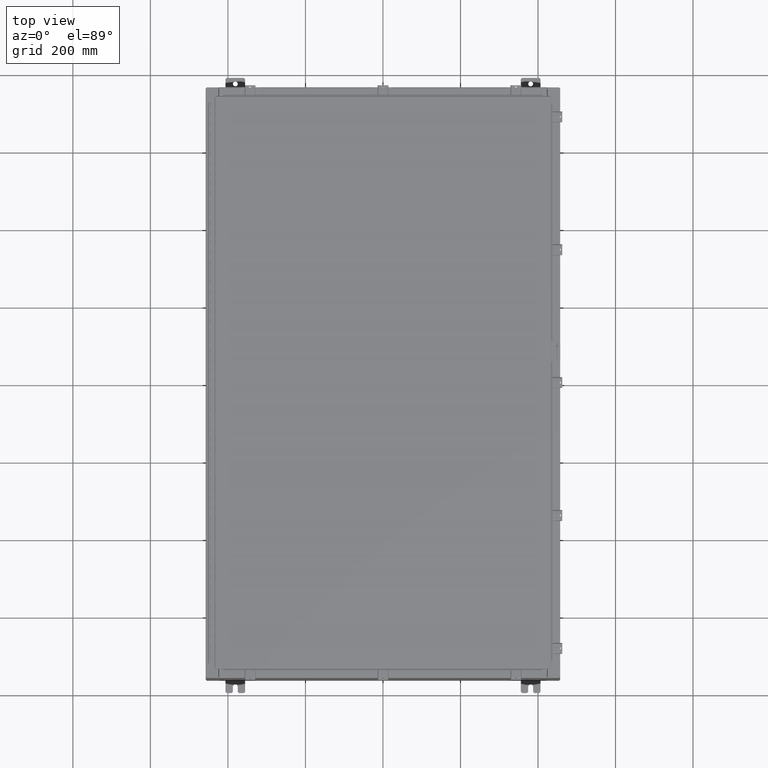
[diagram: clean part render]
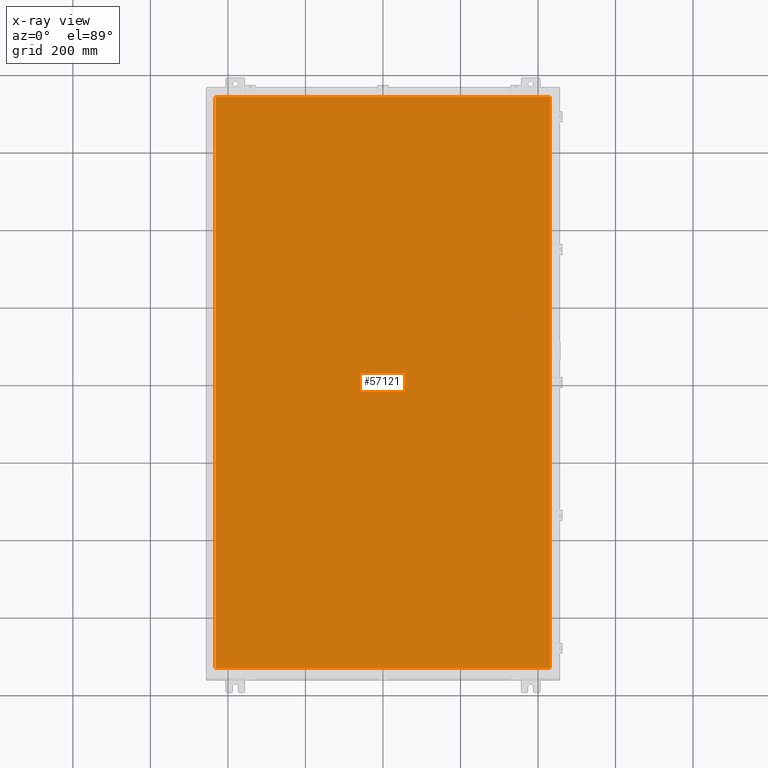
[diagram: x-ray — body ghosted, one internal face saturated and labeled with its STEP entity id]
A machine part, top view, then the same camera in x-ray: the body is ghosted and one INTERNAL B-rep face — a face not visible from any outside direction — is saturated and labeled: STEP entity #57121.
In plain terms, the highlighted planar face has unit normal (0, 0, -1).
Its self-contained STEP definition (entity closure, byte-faithful):
#585 = PLANE ( 'NONE',  #5860 ) ;
#938 = VERTEX_POINT ( 'NONE', #27040 ) ;
#1952 = VERTEX_POINT ( 'NONE', #56363 ) ;
#1992 = LINE ( 'NONE', #39474, #2623 ) ;
#2623 = VECTOR ( 'NONE', #58842, 39.37007874015748100 ) ;
#3828 = CARTESIAN_POINT ( 'NONE',  ( 16.99030000000000500, -29.00630000000000000, -0.07470000000000019700 ) ) ;
#4086 = ORIENTED_EDGE ( 'NONE', *, *, #13246, .F. ) ;
#5860 = AXIS2_PLACEMENT_3D ( 'NONE', #54025, #39497, #10447 ) ;
#8773 = ORIENTED_EDGE ( 'NONE', *, *, #40420, .F. ) ;
#9940 = CARTESIAN_POINT ( 'NONE',  ( -16.99029999999999400, 29.00630000000000000, -0.07469999999999582500 ) ) ;
#10447 = DIRECTION ( 'NONE',  ( -1.000000000000000000, 0.0000000000000000000, -0.0000000000000000000 ) ) ;
#10857 = FACE_OUTER_BOUND ( 'NONE', #30134, .T. ) ;
#11169 = ORIENTED_EDGE ( 'NONE', *, *, #50285, .F. ) ;
#11927 = VERTEX_POINT ( 'NONE', #37158 ) ;
#13246 = EDGE_CURVE ( 'NONE', #1952, #11927, #42598, .T. ) ;
#14784 = ORIENTED_EDGE ( 'NONE', *, *, #38473, .F. ) ;
#16760 = VECTOR ( 'NONE', #43926, 39.37007874015748100 ) ;
#23332 = CARTESIAN_POINT ( 'NONE',  ( 16.99030000000000500, -29.00630000000000000, -0.07470000000000000300 ) ) ;
#27040 = CARTESIAN_POINT ( 'NONE',  ( 16.99030000000000500, 29.00630000000000000, -0.07470000000000000300 ) ) ;
#28058 = DIRECTION ( 'NONE',  ( 0.0000000000000000000, 1.000000000000000000, 0.0000000000000000000 ) ) ;
#29789 = DIRECTION ( 'NONE',  ( -1.000000000000000000, -0.0000000000000000000, -0.0000000000000000000 ) ) ;
#30134 = EDGE_LOOP ( 'NONE', ( #14784, #8773, #4086, #11169 ) ) ;
#31787 = LINE ( 'NONE', #3828, #44747 ) ;
#32595 = VECTOR ( 'NONE', #29789, 39.37007874015748100 ) ;
#34085 = LINE ( 'NONE', #58964, #32595 ) ;
#37158 = CARTESIAN_POINT ( 'NONE',  ( -16.99029999999999800, -29.00630000000000000, -0.07470000000000000300 ) ) ;
#38473 = EDGE_CURVE ( 'NONE', #45668, #938, #31787, .T. ) ;
#39474 = CARTESIAN_POINT ( 'NONE',  ( -16.99029999999999800, -29.00630000000000300, -0.07469999999999804600 ) ) ;
#39497 = DIRECTION ( 'NONE',  ( 0.0000000000000000000, 0.0000000000000000000, -1.000000000000000000 ) ) ;
#40420 = EDGE_CURVE ( 'NONE', #11927, #45668, #1992, .T. ) ;
#42598 = LINE ( 'NONE', #9940, #16760 ) ;
#43926 = DIRECTION ( 'NONE',  ( 0.0000000000000000000, -1.000000000000000000, 0.0000000000000000000 ) ) ;
#44747 = VECTOR ( 'NONE', #28058, 39.37007874015748100 ) ;
#45668 = VERTEX_POINT ( 'NONE', #23332 ) ;
#50285 = EDGE_CURVE ( 'NONE', #938, #1952, #34085, .T. ) ;
#54025 = CARTESIAN_POINT ( 'NONE',  ( 0.0000000000000000000, 0.0000000000000000000, -0.07470000000000000300 ) ) ;
#56363 = CARTESIAN_POINT ( 'NONE',  ( -16.99029999999999400, 29.00630000000000000, -0.07470000000000000300 ) ) ;
#57121 = ADVANCED_FACE ( 'NONE', ( #10857 ), #585, .T. ) ;
#58842 = DIRECTION ( 'NONE',  ( 1.000000000000000000, -0.0000000000000000000, -0.0000000000000000000 ) ) ;
#58964 = CARTESIAN_POINT ( 'NONE',  ( 16.99030000000000500, 29.00630000000000300, -0.07469999999999804600 ) ) ;